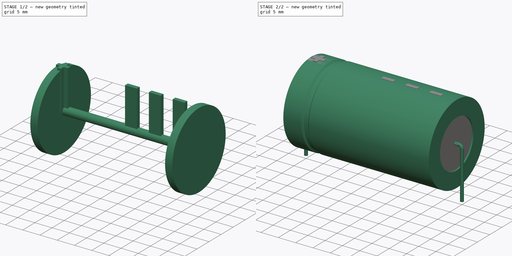
[diagram: build sequence overview — one tinted view per stage of 2, left to right]
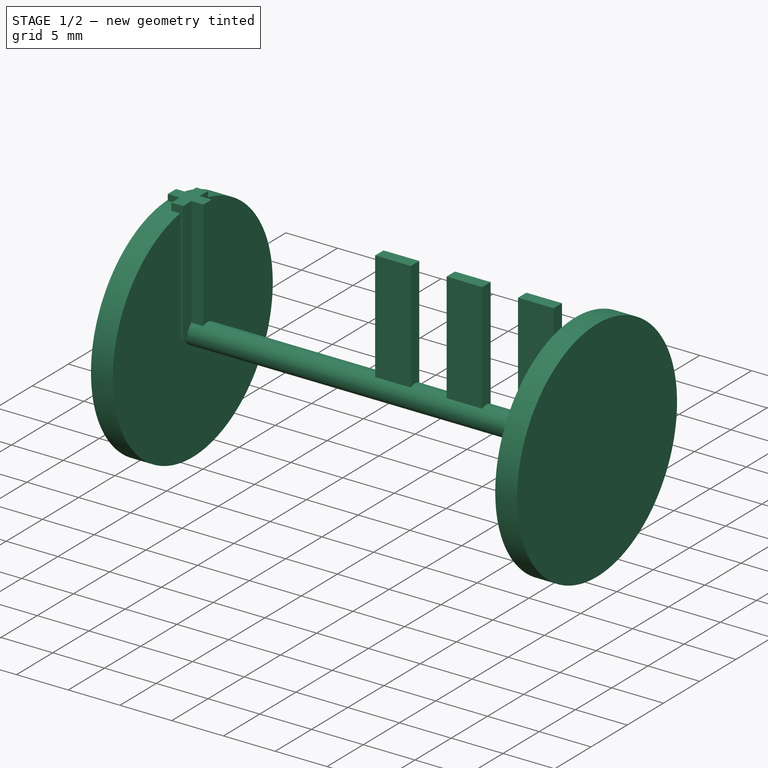
[diagram: stage 1 of 2 — iso view after this stage's code; geometry added in this stage tinted green]
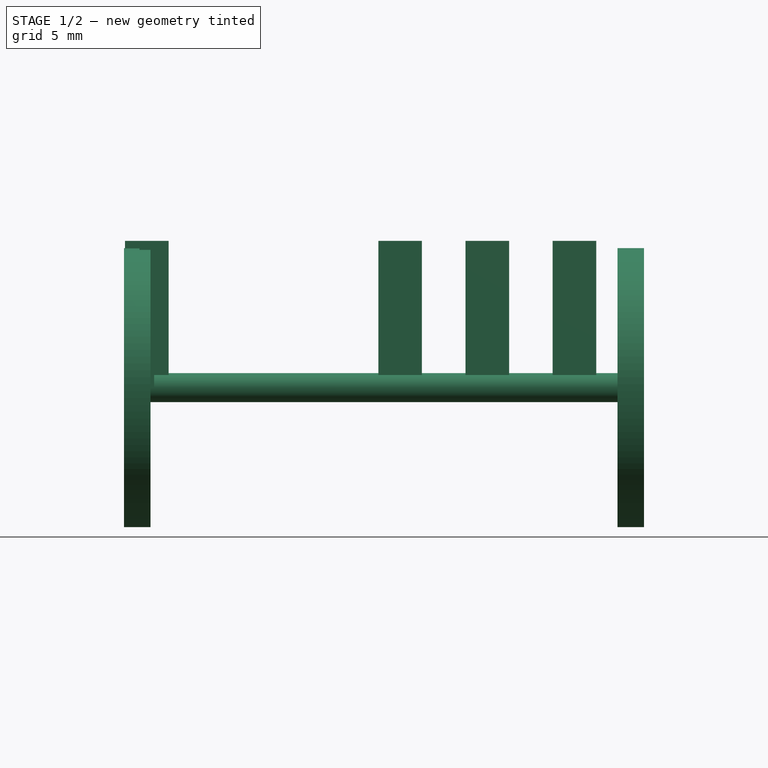
[diagram: stage 1 of 2 — front view after this stage's code; geometry added in this stage tinted green]
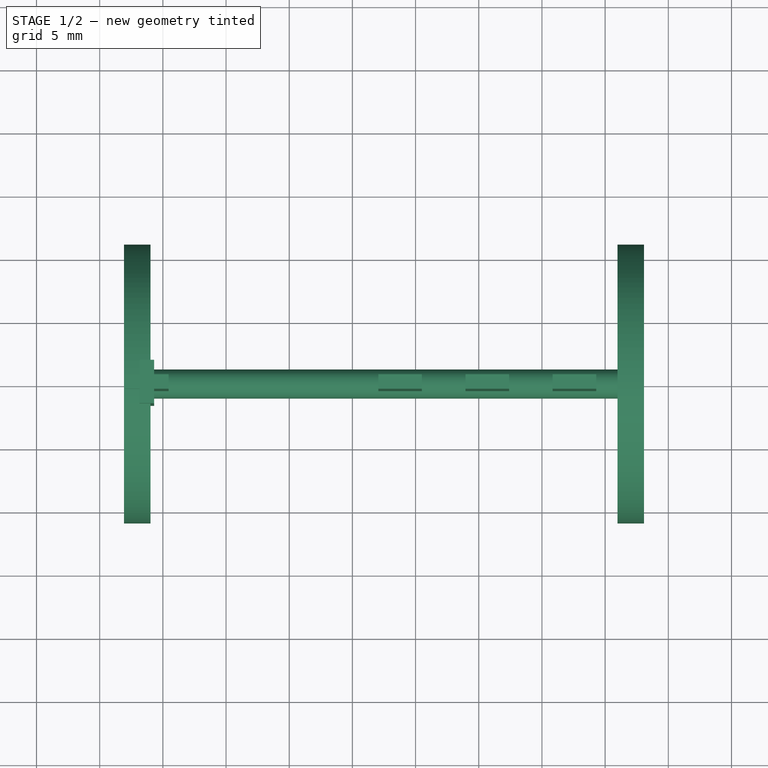
[diagram: stage 1 of 2 — top view after this stage's code; geometry added in this stage tinted green]
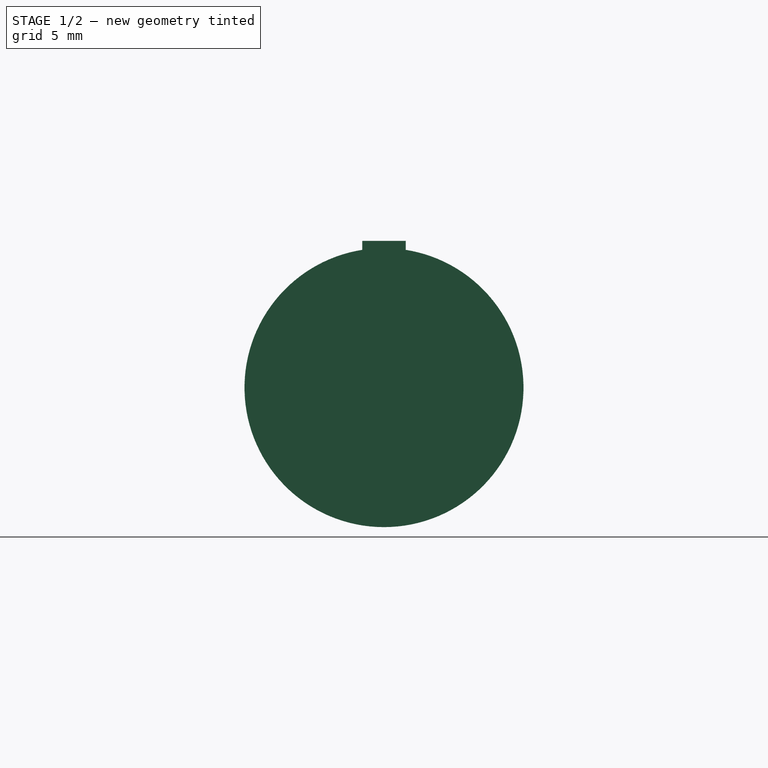
[diagram: stage 1 of 2 — right view after this stage's code; geometry added in this stage tinted green]
FCSTD DOCUMENT  (FreeCAD 0.16R6703 (Git))
Label: CP_Axial_L42.0mm_D23.0mm_P45.00mm_Horizontal
License: All rights reserved
LicenseURL: http://en.wikipedia.org/wiki/All_rights_reserved
objects: Sketcher::SketchObject×5, PartDesign::Revolution×2, Spreadsheet::Sheet×1, Part::Sweep×1, PartDesign::Pad×1
note: 12 computed .brp shape members not serialized (recipe doc carries the construction recipe); baked Part::Feature solids carry a one-line shape summary decoded from their .brp

FEATURE [PartDesign::Revolution] Revolution001
  Angle = 360
  Axis = (5.13966,0,0)
  Base = (6.97588,0,11.6)
  Placement = pos=(0,0,0) rot=(1,0,0;1.5708rad)
  ReferenceAxis = -> Sketch003 [Axis1]
  Sketch = -> Sketch003
FEATURE [Sketcher::SketchObject] Sketch004
  Placement = pos=(0,0,11.6) rot=(0,0,1;0rad)
  expr: Constraints[71] = dimensions.d * 0.05
  expr: Constraints[32] = dimensions.d * 0.05 / 2
  expr: Constraints[33] = (dimensions.RM - dimensions.L) / 2 + 0.012 * dimensions.L
  expr: Constraints[65] = 0.05 * dimensions.d
  expr: Constraints[64] = dimensions.d * 0.05
  expr: Constraints[61] = dimensions.d * 0.05
  expr: Constraints[67] = dimensions.d * 0.05
  expr: Constraints[31] = (dimensions.RM - dimensions.L) / 2 + 0.9 * dimensions.L
  expr: Constraints[66] = dimensions.d * 0.05
  expr: Constraints[26] = dimensions.d * 0.05
  expr: Constraints[28] = dimensions.d * 0.15
  expr: Constraints[59] = dimensions.d * 0.05
  expr: Constraints[62] = dimensions.d * 0.05
  expr: Constraints[63] = dimensions.d * 0.05
  expr: Constraints[60] = dimensions.d * 0.05
  expr: Constraints[27] = dimensions.d * 0.05 / 2
  expr: Constraints[30] = dimensions.d * 0.15
  expr: Constraints[29] = dimensions.d * 0.15
  expr: Constraints[68] = dimensions.d * 0.15
  expr: Placement.Base.z = 0.1 + dimensions.d / 2
  expr: Constraints[69] = dimensions.d * 0.15
  expr: Constraints[58] = dimensions.d * 0.05
  expr: Constraints[70] = dimensions.d * 0.05
  sketch-geometry (24):
    g0: LineSegment StartX=39.3 StartY=0.575 StartZ=0 EndX=35.85 EndY=0.575 EndZ=0
    g1: LineSegment StartX=35.85 StartY=0.575 StartZ=0 EndX=35.85 EndY=-0.575 EndZ=0
    g2: LineSegment StartX=35.85 StartY=-0.575 StartZ=0 EndX=39.3 EndY=-0.575 EndZ=0
    g3: LineSegment StartX=39.3 StartY=-0.575 StartZ=0 EndX=39.3 EndY=0.575 EndZ=0
    g4: LineSegment StartX=28.95 StartY=0.575 StartZ=0 EndX=32.4 EndY=0.575 EndZ=0
    g5: LineSegment StartX=32.4 StartY=0.575 StartZ=0 EndX=32.4 EndY=-0.575 EndZ=0
    g6: LineSegment StartX=32.4 StartY=-0.575 StartZ=0 EndX=28.95 EndY=-0.575 EndZ=0
    g7: LineSegment StartX=28.95 StartY=-0.575 StartZ=0 EndX=28.95 EndY=0.575 EndZ=0
    g8: LineSegment StartX=25.5 StartY=0.575 StartZ=0 EndX=22.05 EndY=0.575 EndZ=0
    g9: LineSegment StartX=22.05 StartY=0.575 StartZ=0 EndX=22.05 EndY=-0.575 EndZ=0
    g10: LineSegment StartX=22.05 StartY=-0.575 StartZ=0 EndX=25.5 EndY=-0.575 EndZ=0
    g11: LineSegment StartX=25.5 StartY=-0.575 StartZ=0 EndX=25.5 EndY=0.575 EndZ=0
    g12: LineSegment StartX=3.154 StartY=0.575 StartZ=0 EndX=2.004 EndY=0.575 EndZ=0
    g13: LineSegment StartX=3.154 StartY=0.575 StartZ=0 EndX=3.154 EndY=1.725 EndZ=0
    g14: LineSegment StartX=3.154 StartY=1.725 StartZ=0 EndX=4.304 EndY=1.725 EndZ=0
    g15: LineSegment StartX=4.304 StartY=1.725 StartZ=0 EndX=4.304 EndY=0.575 EndZ=0
    g16: LineSegment StartX=4.304 StartY=0.575 StartZ=0 EndX=5.454 EndY=0.575 EndZ=0
    g17: LineSegment StartX=5.454 StartY=0.575 StartZ=0 EndX=5.454 EndY=-0.575 EndZ=0
    g18: LineSegment StartX=5.454 StartY=-0.575 StartZ=0 EndX=4.304 EndY=-0.575 EndZ=0
    g19: LineSegment StartX=4.304 StartY=-0.575 StartZ=0 EndX=4.304 EndY=-1.725 EndZ=0
    g20: LineSegment StartX=4.304 StartY=-1.725 StartZ=0 EndX=3.154 EndY=-1.725 EndZ=0
    g21: LineSegment StartX=3.154 StartY=-1.725 StartZ=0 EndX=3.154 EndY=-0.575 EndZ=0
    g22: LineSegment StartX=3.154 StartY=-0.575 StartZ=0 EndX=2.004 EndY=-0.575 EndZ=0
    g23: LineSegment StartX=2.004 StartY=-0.575 StartZ=0 EndX=2.004 EndY=0.575 EndZ=0
  constraints (72):
    c: Coincident(g0,g1)
    c: Coincident(g1,g2)
    c: Coincident(g2,g3)
    c: Coincident(g3,g0)
    c: Horizontal(g0)
    c: Horizontal(g2)
    c: Vertical(g1)
    c: Vertical(g3)
    c: Coincident(g4,g5)
    c: Coincident(g5,g6)
    c: Coincident(g6,g7)
    c: Coincident(g7,g4)
    c: Horizontal(g4)
    c: Horizontal(g6)
    c: Vertical(g5)
    c: Vertical(g7)
    c: Coincident(g8,g9)
    c: Coincident(g9,g10)
    c: Coincident(g10,g11)
    c: Coincident(g11,g8)
    c: Horizontal(g8)
    c: Horizontal(g10)
    c: Vertical(g9)
    c: Vertical(g11)
    c: DistanceY(g4,g0) = 0
    c: DistanceY(g8,g4) = 0
    c: DistanceY(g3,g3) = 1.15
    c: DistanceY(g-1,g0) = 0.575
    c: DistanceX(g2,g2) = 3.45
    c: DistanceX(g5,g1) = 3.45
    c: DistanceX(g10,g6) = 3.45
    c: DistanceX(g-1,g2) = 39.3
    c: DistanceY(g-1,g12) = 0.575
    c: DistanceX(g-1,g12) = 2.004
    c: Horizontal(g12)
    c: Coincident(g13,g12)
    c: Vertical(g13)
    c: Coincident(g14,g13)
    c: Horizontal(g14)
    c: Coincident(g15,g14)
    c: Vertical(g15)
    c: Coincident(g16,g15)
    c: Horizontal(g16)
    c: Coincident(g17,g16)
    c: Vertical(g17)
    c: Coincident(g18,g17)
    c: Horizontal(g18)
    c: Coincident(g19,g18)
    c: Vertical(g19)
    c: Coincident(g20,g19)
    c: Horizontal(g20)
    c: Coincident(g21,g20)
    c: Vertical(g21)
    c: Coincident(g22,g21)
    c: Horizontal(g22)
    c: Coincident(g23,g22)
    c: Coincident(g23,g12)
    c: Vertical(g23)
    c: DistanceY(g22,g12) = 1.15
    c: DistanceY(g17,g16) = 1.15
    c: DistanceX(g13,g14) = 1.15
    c: DistanceX(g20,g19) = 1.15
    c: DistanceX(g22,g22) = 1.15
    c: DistanceX(g18,g18) = 1.15
    c: DistanceX(g12,g12) = 1.15
    c: DistanceY(g15,g15) = 1.15
    c: DistanceY(g13,g13) = 1.15
    c: DistanceY(g21,g21) = 1.15
    c: DistanceX(g6,g6) = 3.45
    c: DistanceX(g10,g10) = 3.45
    c: DistanceY(g7,g7) = 1.15
    c: DistanceY(g9,g9) = 1.15
FEATURE [PartDesign::Pad] Pad
  Length = 11.615
  Length2 = 100
  Placement = pos=(0,0,11.6) rot=(0,0,1;0rad)
  Sketch = -> Sketch004
  Type = 0
  expr: Length = dimensions.d * 0.505
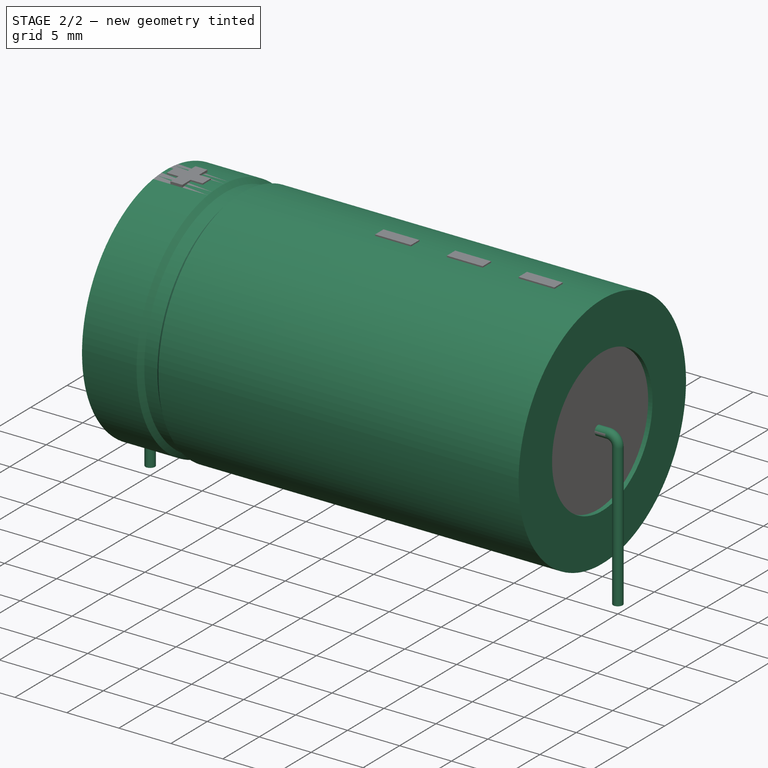
[diagram: stage 2 of 2 — iso view after this stage's code; geometry added in this stage tinted green]
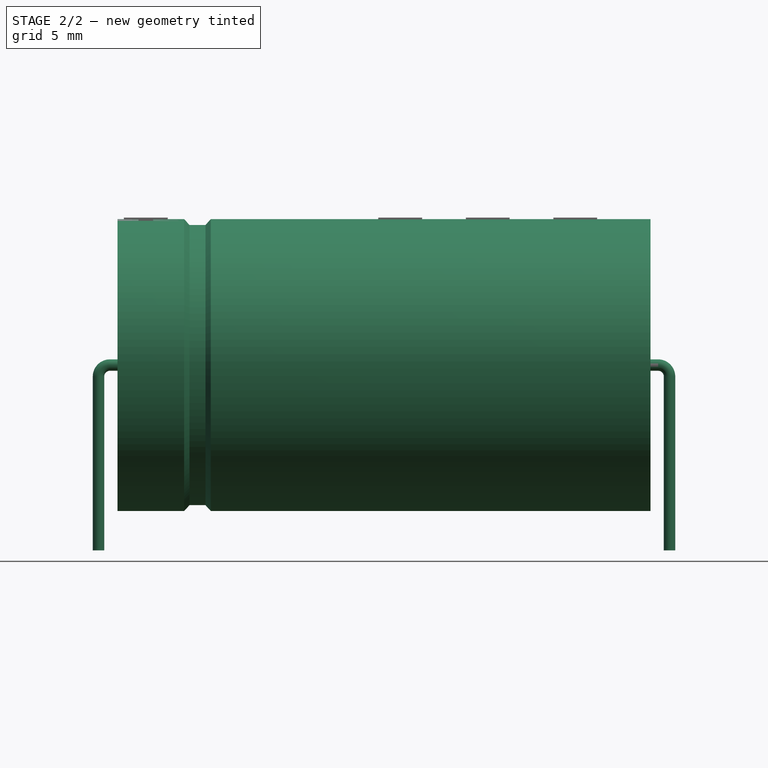
[diagram: stage 2 of 2 — front view after this stage's code; geometry added in this stage tinted green]
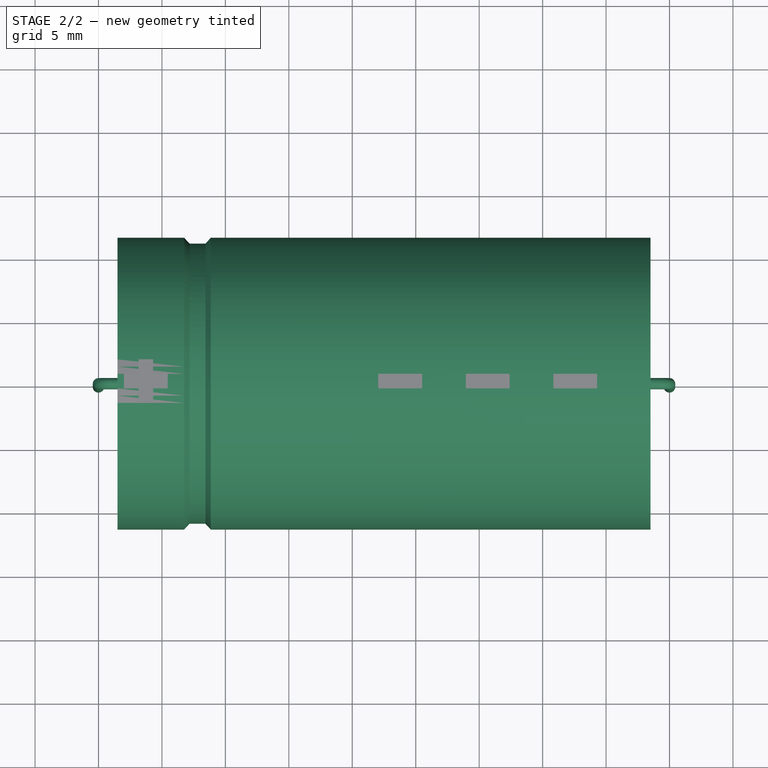
[diagram: stage 2 of 2 — top view after this stage's code; geometry added in this stage tinted green]
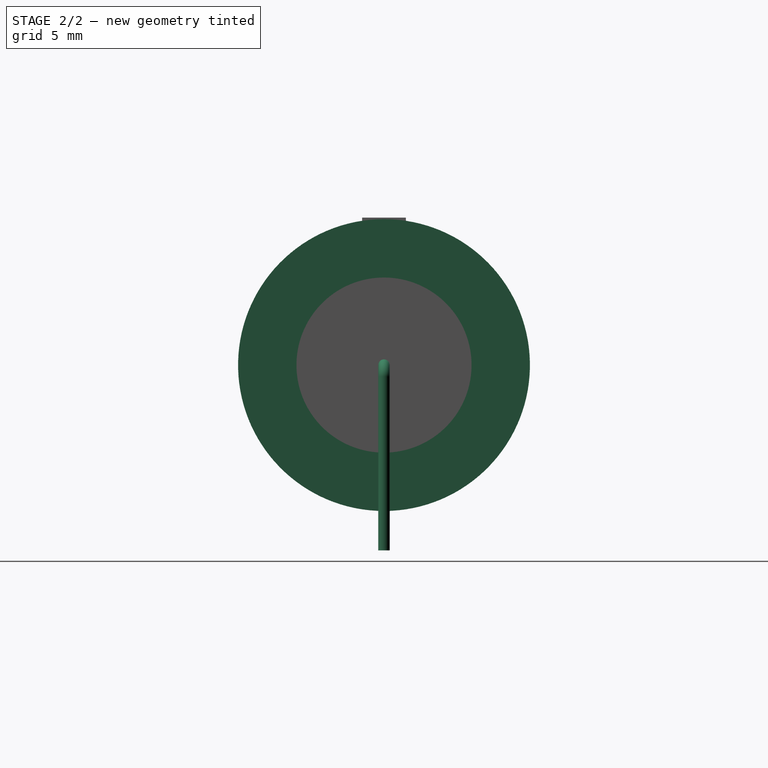
[diagram: stage 2 of 2 — right view after this stage's code; geometry added in this stage tinted green]
FEATURE [Sketcher::SketchObject] Sketch001
  Placement = pos=(0,0,0) rot=(1,0,0;1.5708rad)
  expr: Constraints[15] = dimensions.d_wire
  expr: Constraints[20] = dimensions.d_wire
  expr: Constraints[18] = dimensions.d / 2 + 0.1
  expr: Constraints[12] = dimensions.RM
  expr: Constraints[7] = dimensions.d_wire
  sketch-geometry (7):
    g0: LineSegment StartX=0 StartY=-3 StartZ=0 EndX=0 EndY=10.7 EndZ=0
    g1: ArcOfCircle CenterX=0.9 CenterY=10.7 CenterZ=0 NormalX=0 NormalY=0 NormalZ=1 Radius=0.9 StartAngle=1.57079 EndAngle=3.14159
    g2: LineSegment [constr] StartX=0 StartY=10.7 StartZ=0 EndX=0.9 EndY=10.7 EndZ=0
    g3: LineSegment [constr] StartX=0.9 StartY=10.7 StartZ=0 EndX=0.9 EndY=11.6 EndZ=0
    g4: LineSegment StartX=0.90001 StartY=11.6 StartZ=0 EndX=44.1 EndY=11.6 EndZ=0
    g5: LineSegment StartX=45 StartY=10.7 StartZ=0 EndX=45 EndY=-3 EndZ=0
    g6: ArcOfCircle CenterX=44.1 CenterY=10.7 CenterZ=0 NormalX=0 NormalY=0 NormalZ=1 Radius=0.9 StartAngle=0 EndAngle=1.5708
  constraints (23):
    c: Vertical(g0)
    c: Coincident(g1,g0)
    c: Coincident(g2,g0)
    c: Coincident(g2,g1)
    c: Horizontal(g2)
    c: Coincident(g3,g1)
    c: Vertical(g3)
    c: DistanceY(g3,g3) = 0.9
    c: Coincident(g4,g1)
    c: Horizontal(g4)
    c: Vertical(g5)
    c: Equal(g5,g0)
    c: DistanceX(g-1,g5) = 45
    c: Coincident(g6,g4)
    c: Coincident(g6,g5)
    c: DistanceX(g6,g5) = 0.9
    c: PointOnObject(g0,g-2)
    c: DistanceY(g0,g-1) = 3
    c: DistanceY(g-1,g1) = 11.6
    c: DistanceY(g0,g5) = 0
    c: DistanceX(g0,g1) = 0.9
    c: DistanceX(g6,g4) = 0
    c: DistanceY(g6,g5) = 0
FEATURE [Sketcher::SketchObject] Sketch002  label="Axis0"
  Placement = pos=(0,0,0) rot=(1,0,0;1.5708rad)
  expr: Constraints[0] = (dimensions.RM - dimensions.L) / 2
  expr: Constraints[23] = Spreadsheet.L * 0.03
  expr: Constraints[22] = Spreadsheet.d * 0.02
  expr: Constraints[20] = Spreadsheet.L * 0.05
  expr: Constraints[19] = Spreadsheet.L * 0.125
  expr: Constraints[24] = Spreadsheet.L * 0.01
  expr: Constraints[7] = Spreadsheet.d * 0.2
  expr: Constraints[10] = Spreadsheet.d / 2 + 0.1
  expr: Constraints[1] = dimensions.d + 0.1
  expr: Constraints[8] = Spreadsheet.L
  sketch-geometry (10):
    g0: LineSegment [constr] StartX=106.464 StartY=-65.1216 StartZ=0 EndX=-91.2241 EndY=-65.1216 EndZ=0
    g1: LineSegment StartX=1.5 StartY=23.1 StartZ=0 EndX=1.5 EndY=18.5 EndZ=0
    g2: LineSegment StartX=1.5 StartY=18.5 StartZ=0 EndX=43.5 EndY=18.5 EndZ=0
    g3: LineSegment StartX=43.5 StartY=18.5 StartZ=0 EndX=43.5 EndY=23.1 EndZ=0
    g4: LineSegment [constr] StartX=6.97588 StartY=11.6 StartZ=0 EndX=12.1155 EndY=11.6 EndZ=0
    g5: LineSegment StartX=1.5 StartY=23.1 StartZ=0 EndX=6.75 EndY=23.1 EndZ=0
    g6: LineSegment StartX=43.5 StartY=23.1 StartZ=0 EndX=8.85 EndY=23.1 EndZ=0
    g7: LineSegment StartX=8.85 StartY=23.1 StartZ=0 EndX=8.43 EndY=22.64 EndZ=0
    g8: LineSegment StartX=8.43 StartY=22.64 StartZ=0 EndX=7.17 EndY=22.64 EndZ=0
    g9: LineSegment StartX=7.17 StartY=22.64 StartZ=0 EndX=6.75 EndY=23.1 EndZ=0
  constraints (26):
    c: DistanceX(g-1,g1) = 1.5
    c: DistanceY(g-1,g1) = 23.1
    c: Vertical(g1)
    c: Coincident(g2,g1)
    c: Horizontal(g2)
    c: Coincident(g3,g2)
    c: Vertical(g3)
    c: DistanceY(g3,g3) = 4.6
    c: DistanceX(g2,g2) = 42
    c: Horizontal(g4)
    c: DistanceY(g-1,g4) = 11.6
    c: Coincident(g5,g1)
    c: Horizontal(g5)
    c: Coincident(g6,g3)
    c: Horizontal(g6)
    c: Coincident(g7,g6)
    c: Horizontal(g8)
    c: Coincident(g9,g8)
    c: Coincident(g9,g5)
    c: DistanceX(g5,g5) = 5.25
    c: DistanceX(g5,g6) = 2.1
    c: Coincident(g7,g8)
    c: DistanceY(g8,g5) = 0.46
    c: DistanceX(g8,g8) = 1.26
    c: DistanceX(g5,g8) = 0.42
    c: DistanceY(g6,g5) = 0
FEATURE [Spreadsheet::Sheet] Spreadsheet  label="dimensions"
  cells = A1=L; B1(L)=42; A2=d; B2(d)=23; C2=0; A3=RM; B3(RM)=45; C3=0; A4=d_wire; B4(d_wire)=0.8999999999999999
FEATURE [Sketcher::SketchObject] Sketch
  Placement = pos=(0,0,-2) rot=(0,0,1;0rad)
  expr: Constraints[1] = dimensions.d_wire / 2
  sketch-geometry (1):
    g0: Circle CenterX=0 CenterY=0 CenterZ=0 NormalX=0 NormalY=0 NormalZ=1 Radius=0.45
  constraints (2):
    c: Coincident(g0,g-1)
    c: Radius(g0) = 0.45
FEATURE [Part::Sweep] Sweep
  Frenet = false
  Sections = -> [Sketch]
  Solid = true
  Spine = -> Sketch001
  Transition = 1
FEATURE [Sketcher::SketchObject] Sketch003  label="Axis001"
  Placement = pos=(0,0,0) rot=(1,0,0;1.5708rad)
  expr: Constraints[8] = dimensions.L * 0.05
  expr: Constraints[25] = dimensions.L * 0.88
  expr: Constraints[10] = dimensions.L * 0.98
  expr: Constraints[1] = 0.1 + dimensions.d / 2
  expr: Constraints[24] = dimensions.d * 0.05
  expr: Constraints[12] = (dimensions.RM - dimensions.L) / 2 + 0.01 * dimensions.L
  expr: Constraints[6] = 0.1 + dimensions.d * 0.98
  sketch-geometry (10):
    g0: LineSegment [constr] StartX=106.464 StartY=-65.1216 StartZ=0 EndX=-91.2241 EndY=-65.1216 EndZ=0
    g1: LineSegment [constr] StartX=6.97588 StartY=11.6 StartZ=0 EndX=12.1155 EndY=11.6 EndZ=0
    g2: LineSegment StartX=1.92 StartY=22.64 StartZ=0 EndX=4.02 EndY=22.64 EndZ=0
    g3: LineSegment StartX=1.92 StartY=11.6 StartZ=0 EndX=1.92 EndY=22.64 EndZ=0
    g4: LineSegment StartX=40.98 StartY=22.64 StartZ=0 EndX=43.08 EndY=22.64 EndZ=0
    g5: LineSegment StartX=43.08 StartY=22.64 StartZ=0 EndX=43.08 EndY=11.6 EndZ=0
    g6: LineSegment StartX=1.92 StartY=11.6 StartZ=0 EndX=43.08 EndY=11.6 EndZ=0
    g7: LineSegment StartX=40.98 StartY=22.64 StartZ=0 EndX=40.98 EndY=12.75 EndZ=0
    g8: LineSegment StartX=40.98 StartY=12.75 StartZ=0 EndX=4.02 EndY=12.75 EndZ=0
    g9: LineSegment StartX=4.02 StartY=12.75 StartZ=0 EndX=4.02 EndY=22.64 EndZ=0
  constraints (26):
    c: Horizontal(g1)
    c: DistanceY(g-1,g1) = 11.6
    c: Horizontal(g2)
    c: Vertical(g3)
    c: Horizontal(g4)
    c: Vertical(g5)
    c: DistanceY(g-1,g2) = 22.64
    c: Coincident(g3,g2)
    c: DistanceX(g2,g2) = 2.1
    c: Coincident(g4,g5)
    c: DistanceX(g2,g4) = 41.16
    c: DistanceY(g4,g2) = 0
    c: DistanceX(g-1,g3) = 1.92
    c: Coincident(g6,g3)
    c: Coincident(g6,g5)
    c: Horizontal(g6)
    c: Coincident(g7,g4)
    c: Vertical(g7)
    c: Coincident(g8,g7)
    c: Horizontal(g8)
    c: Coincident(g9,g8)
    c: Coincident(g9,g2)
    c: Vertical(g9)
    c: PointOnObject(g1,g6)
    c: DistanceY(g1,g7) = 1.15
    c: DistanceX(g2,g4) = 36.96
FEATURE [PartDesign::Revolution] Revolution
  Angle = 360
  Axis = (5.13966,0,0)
  Base = (6.97588,0,11.6)
  Placement = pos=(0,0,0) rot=(1,0,0;1.5708rad)
  ReferenceAxis = -> Sketch002 [Axis1]
  Sketch = -> Sketch002
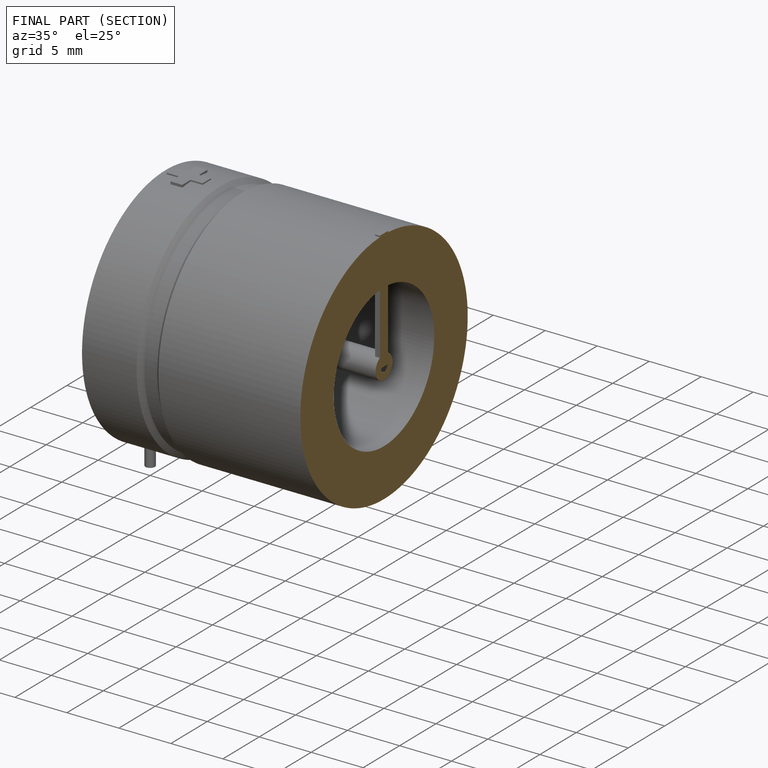
[diagram: finished part — half-section view (interior)]
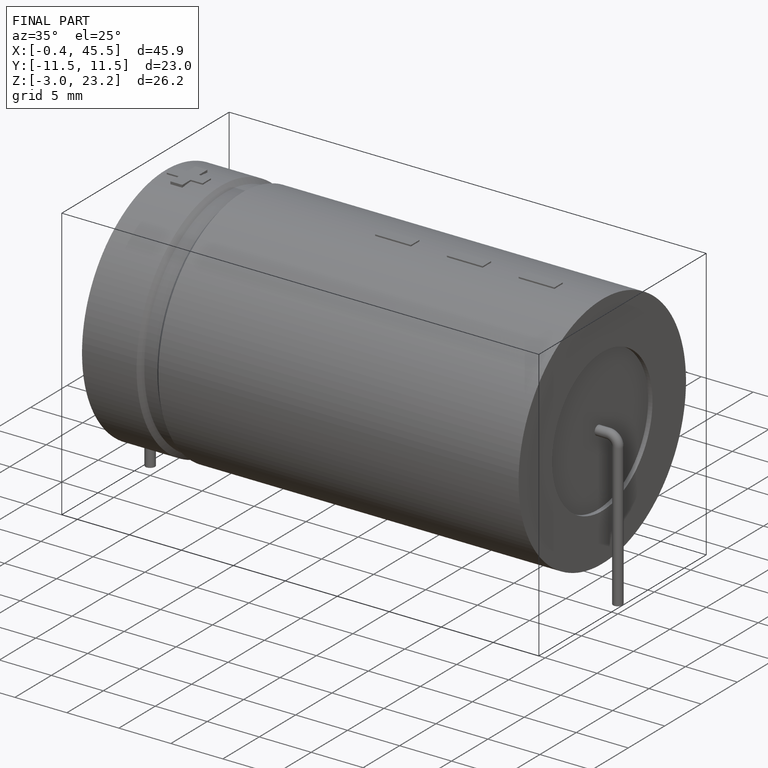
[diagram: finished part — iso view with bounding-box wireframe]
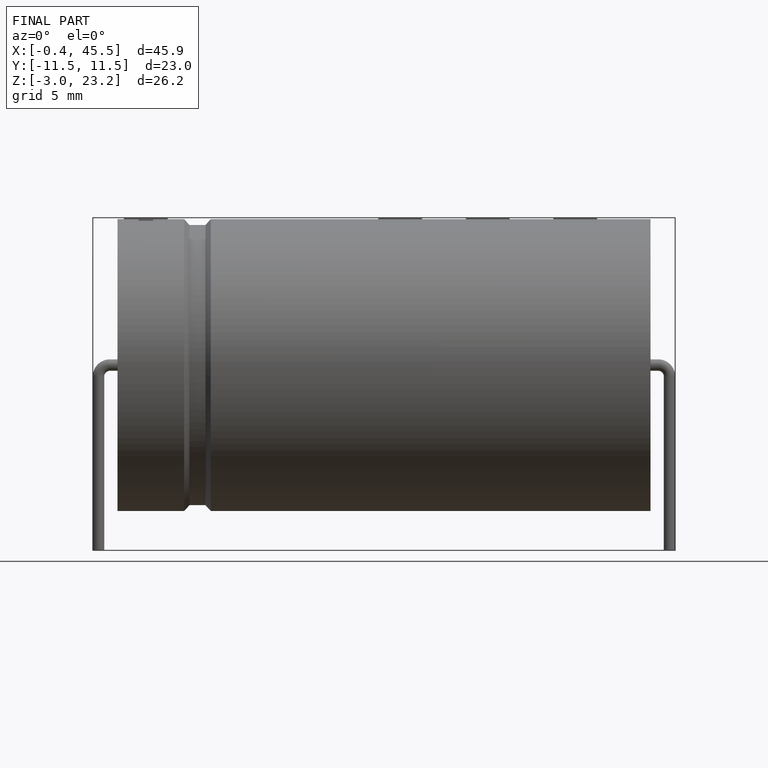
[diagram: finished part — front view with bounding-box wireframe]
